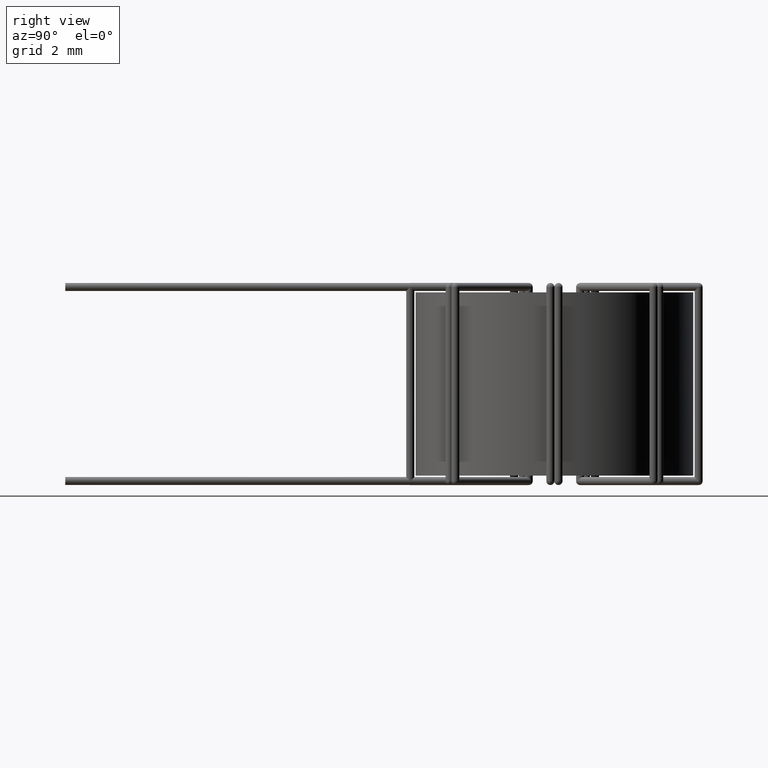
[diagram: clean part render]
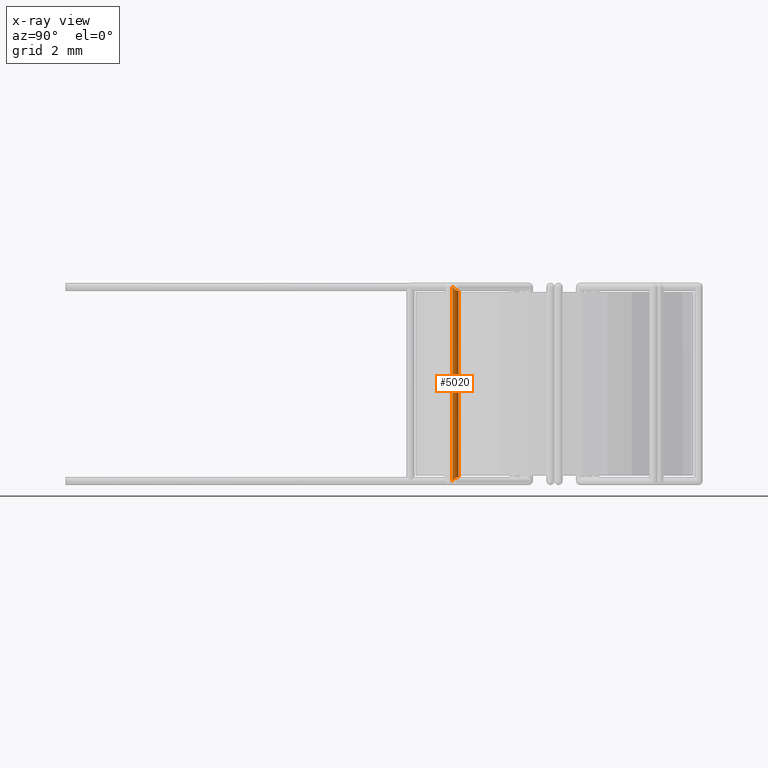
[diagram: x-ray — body ghosted, one internal face saturated and labeled with its STEP entity id]
A machine part, right view, then the same camera in x-ray: the body is ghosted and one INTERNAL B-rep face — a face not visible from any outside direction — is saturated and labeled: STEP entity #5020.
In plain terms, the highlighted cylindrical surface (edge-blend (fillet) strip) has radius 0.15 mm, axis along (-0, -0, -1).
Its self-contained STEP definition (entity closure, byte-faithful):
#135 = VECTOR ( 'NONE', #2456, 1000.000000000000000 ) ;
#329 = ORIENTED_EDGE ( 'NONE', *, *, #3544, .T. ) ;
#616 = EDGE_CURVE ( 'NONE', #1205, #5009, #9044, .T. ) ;
#699 = EDGE_CURVE ( 'NONE', #5009, #13541, #3436, .T. ) ;
#1116 = CARTESIAN_POINT ( 'NONE',  ( -3.720889244992057900, -3.633021279348036100, 6.849999999999997900 ) ) ;
#1205 = VERTEX_POINT ( 'NONE', #9486 ) ;
#1731 = CYLINDRICAL_SURFACE ( 'NONE', #15015, 0.1499999999999999100 ) ;
#1740 = DIRECTION ( 'NONE',  ( -8.177564888977984300E-017, -8.177564888978012700E-017, -1.000000000000000000 ) ) ;
#1982 = DIRECTION ( 'NONE',  ( -8.888657488019547400E-017, -8.888657488019578200E-017, -1.000000000000000000 ) ) ;
#2351 = CARTESIAN_POINT ( 'NONE',  ( -3.783021279348023100, -3.570889244992071700, 6.849999999999999600 ) ) ;
#2456 = DIRECTION ( 'NONE',  ( -8.888657488019547400E-017, -8.888657488019578200E-017, -1.000000000000000000 ) ) ;
#3208 = ORIENTED_EDGE ( 'NONE', *, *, #616, .F. ) ;
#3436 = LINE ( 'NONE', #3727, #135 ) ;
#3544 = EDGE_CURVE ( 'NONE', #1205, #7125, #6843, .T. ) ;
#3727 = CARTESIAN_POINT ( 'NONE',  ( -3.783021279348023600, -3.570889244992072600, -0.05000000000000000300 ) ) ;
#4583 = CARTESIAN_POINT ( 'NONE',  ( -3.783021279348023600, -3.783021279348036400, -0.2000000000000000100 ) ) ;
#5009 = VERTEX_POINT ( 'NONE', #13073 ) ;
#5020 = ADVANCED_FACE ( 'NONE', ( #5589 ), #1731, .T. ) ;
#5589 = FACE_OUTER_BOUND ( 'NONE', #12670, .T. ) ;
#6148 = CARTESIAN_POINT ( 'NONE',  ( -3.783021279348022700, -3.783021279348035600, 6.999999999999999100 ) ) ;
#6843 = LINE ( 'NONE', #11433, #12407 ) ;
#7125 = VERTEX_POINT ( 'NONE', #4583 ) ;
#7128 = ORIENTED_EDGE ( 'NONE', *, *, #14114, .F. ) ;
#7387 = CARTESIAN_POINT ( 'NONE',  ( -3.720889244992058800, -3.720889244992073000, -0.1121320343559643100 ) ) ;
#8540 = CARTESIAN_POINT ( 'NONE',  ( -3.783021279348023600, -3.783021279348036400, -0.2000000000000000100 ) ) ;
#9044 =( BOUNDED_CURVE ( )  B_SPLINE_CURVE ( 3, ( #6148, #9654, #1116, #2351 ),
 .UNSPECIFIED., .F., .T. ) 
 B_SPLINE_CURVE_WITH_KNOTS ( ( 4, 4 ),
 ( 4.712388980384689700, 6.283185307179586200 ),
 .UNSPECIFIED. ) 
 CURVE ( )  GEOMETRIC_REPRESENTATION_ITEM ( )  RATIONAL_B_SPLINE_CURVE ( ( 1.000000000000000000, 0.8047378541243649400, 0.8047378541243649400, 1.000000000000000000 ) ) 
 REPRESENTATION_ITEM ( '' )  );
#9176 = ORIENTED_EDGE ( 'NONE', *, *, #699, .F. ) ;
#9486 = CARTESIAN_POINT ( 'NONE',  ( -3.783021279348022700, -3.783021279348035600, 6.999999999999999100 ) ) ;
#9493 = CARTESIAN_POINT ( 'NONE',  ( -3.889087296526005900, -3.676955262170054500, 6.725196084402841400E-016 ) ) ;
#9654 = CARTESIAN_POINT ( 'NONE',  ( -3.720889244992057900, -3.720889244992071600, 6.912132034355964000 ) ) ;
#9776 = CARTESIAN_POINT ( 'NONE',  ( -3.783021279348023600, -3.570889244992072600, -0.05000000000000000300 ) ) ;
#10538 = DIRECTION ( 'NONE',  ( -0.7071067811865460200, -0.7071067811865489100, 1.257045997084642900E-016 ) ) ;
#11433 = CARTESIAN_POINT ( 'NONE',  ( -3.783021279348023600, -3.783021279348036400, 6.187180397650614300E-016 ) ) ;
#11704 = CARTESIAN_POINT ( 'NONE',  ( -3.783021279348023600, -3.570889244992072600, -0.05000000000000000300 ) ) ;
#12407 = VECTOR ( 'NONE', #1740, 1000.000000000000000 ) ;
#12670 = EDGE_LOOP ( 'NONE', ( #3208, #329, #7128, #9176 ) ) ;
#13073 = CARTESIAN_POINT ( 'NONE',  ( -3.783021279348023100, -3.570889244992071700, 6.849999999999999600 ) ) ;
#13393 =( BOUNDED_CURVE ( )  B_SPLINE_CURVE ( 3, ( #9776, #13519, #7387, #8540 ),
 .UNSPECIFIED., .F., .F. ) 
 B_SPLINE_CURVE_WITH_KNOTS ( ( 4, 4 ),
 ( 3.141592653589794400, 4.712388980384689700 ),
 .UNSPECIFIED. ) 
 CURVE ( )  GEOMETRIC_REPRESENTATION_ITEM ( )  RATIONAL_B_SPLINE_CURVE ( ( 1.000000000000000000, 0.8047378541243652700, 0.8047378541243652700, 1.000000000000000000 ) ) 
 REPRESENTATION_ITEM ( '' )  );
#13519 = CARTESIAN_POINT ( 'NONE',  ( -3.720889244992058800, -3.633021279348036500, -0.05000000000000010700 ) ) ;
#13541 = VERTEX_POINT ( 'NONE', #11704 ) ;
#14114 = EDGE_CURVE ( 'NONE', #13541, #7125, #13393, .T. ) ;
#15015 = AXIS2_PLACEMENT_3D ( 'NONE', #9493, #1982, #10538 ) ;